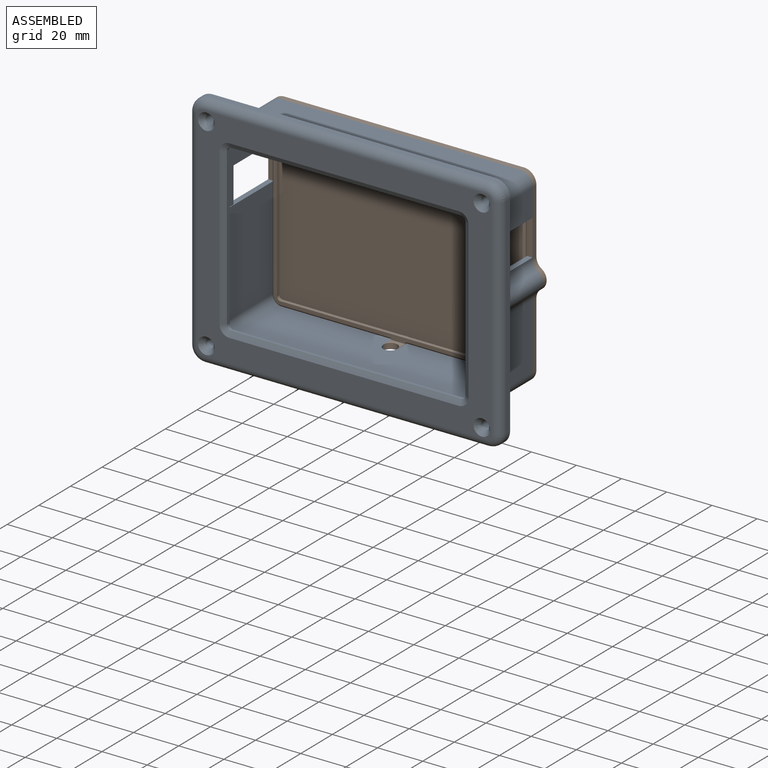
[diagram: assembled view]
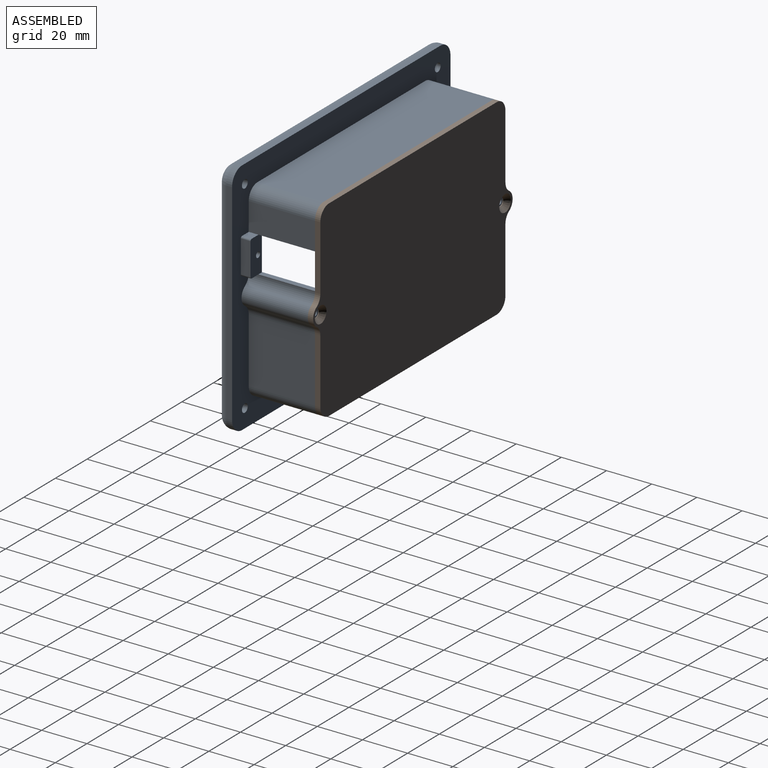
[diagram: assembled view, second angle]
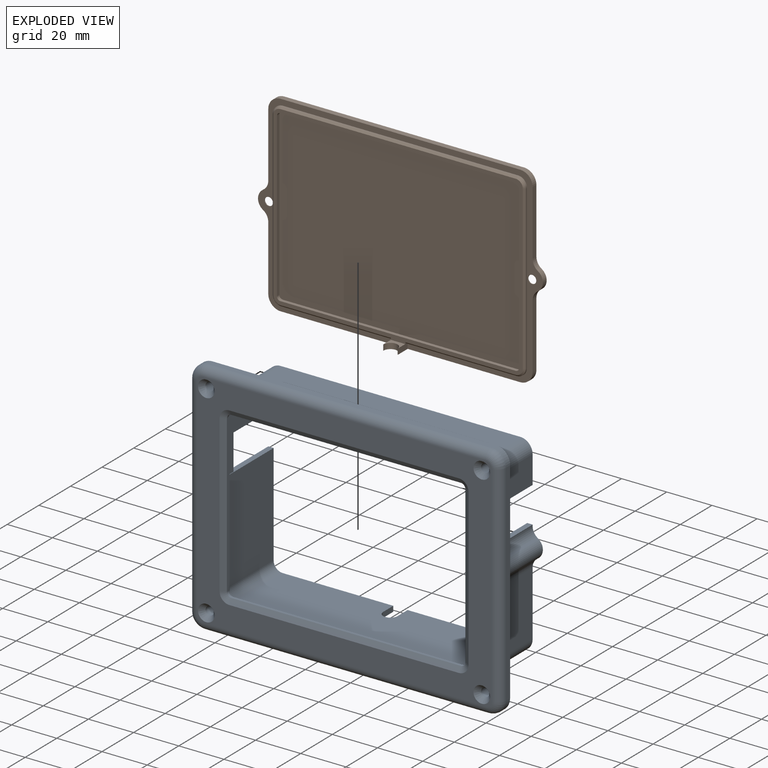
[diagram: exploded view]
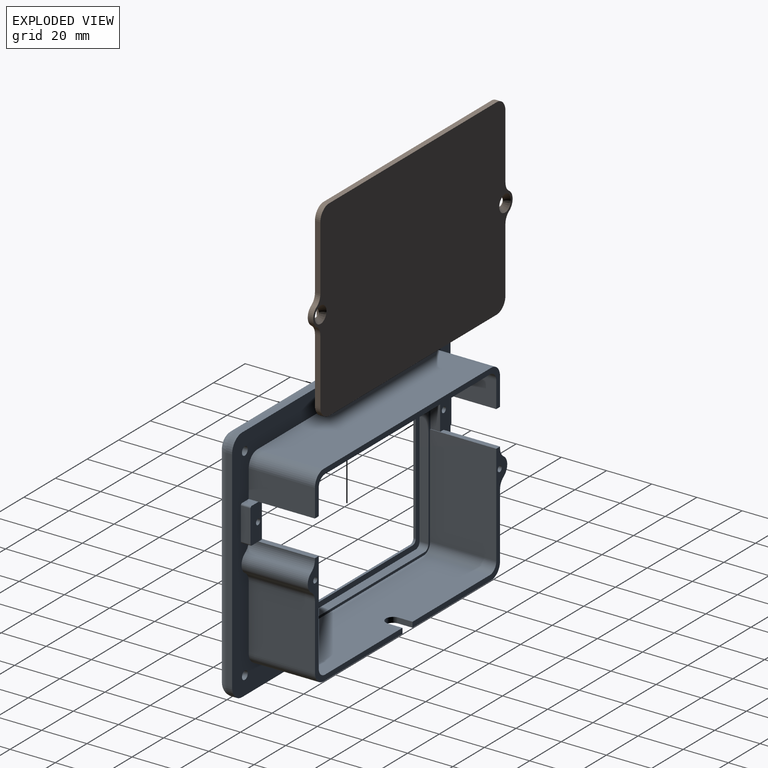
[diagram: exploded view, second angle]
ASSEMBLY  parts=2 mates=2
PART A: 120 faces, bbox 138.1x35.7x105.9 mm
  f0: plane 106.07x29.31mm, normal (0,0,-1), area 3052.9mm2, adj f2,f10,f79,f99,f100,f117,f118,f119
  f1: plane 104.34x29.31mm, normal (0,0,1), area 3002.3mm2, adj f2,f8,f79,f95,f96,f117,f118,f119
  f2: plane 59.89x51.38mm, normal (0,1,0), area 278.2mm2, adj f0,f1,f3,f4,f76,f77,f96,f99
  f3: plane 29.31x0.57mm, normal (-1,0,0), area 16.7mm2, adj f2,f9,f10,f76,f109
  f4: plane 29.31x28.74mm, normal (-1,0,0), area 842.3mm2, adj f2,f10,f99,f110
  f5: plane 29.31x0.57mm, normal (1,0,0), area 16.7mm2, adj f10,f37,f75,f79,f111
  f6: plane 29.31x28.74mm, normal (1,0,0), area 842.3mm2, adj f10,f79,f100,f112
  f7: plane 4.29x4.23mm, normal (0,0,1), area 18.2mm2, adj f10,f42,f82,f113
  f8: plane 112.75x80.26mm, normal (0,1,0), area 403.8mm2, adj f1,f28,f29,f30,f31,f33,f40,f75
  f9: plane 4.29x4.23mm, normal (0,0,-1), area 18.2mm2, adj f3,f10,f42,f114
  f10: plane 138.13x105.92mm, normal (0,1,0), area 4393.5mm2, adj f0,f3,f4,f5,f6,f7,f9,f19
  f11: plane 101.6x1.07mm, normal (0,0,-1), area 108.5mm2, adj f15,f16,f32,f47
  f12: plane 69.32x1.07mm, normal (1,0,0), area 74mm2, adj f16,f17,f32,f43
  f13: plane 101.6x1.07mm, normal (0,0,1), area 108.5mm2, adj f17,f18,f32,f46
  f14: plane 69.32x1.07mm, normal (-1,0,0), area 74mm2, adj f15,f18,f32,f50
  f15: cylinder r=1.98mm len=1.98mm, axis (0,-1,0), area 3.3mm2, adj f11,f14,f32,f49
  f16: cylinder r=1.98mm len=1.98mm, axis (0,-1,0), area 3.3mm2, adj f11,f12,f32,f45
  f17: cylinder r=1.98mm len=1.98mm, axis (0,-1,0), area 3.3mm2, adj f12,f13,f32,f44
  f18: cylinder r=1.98mm len=1.98mm, axis (0,-1,0), area 3.3mm2, adj f13,f14,f32,f48
  f19: cylinder r=6.35mm len=6.35mm, axis (0,1,0), area 25.3mm2, adj f10,f20,f26,f56
  f20: plane 125.43x2.54mm, normal (0,0,1), area 318.6mm2, adj f10,f19,f21,f58
  f21: cylinder r=6.35mm len=6.35mm, axis (0,1,0), area 25.3mm2, adj f10,f20,f22,f57
  f22: plane 93.22x2.54mm, normal (-1,0,0), area 236.8mm2, adj f10,f21,f23,f55
  f23: cylinder r=6.35mm len=6.35mm, axis (0,1,0), area 25.3mm2, adj f10,f22,f24,f53
  f24: plane 125.43x2.54mm, normal (0,0,-1), area 318.6mm2, adj f10,f23,f25,f51
  f25: cylinder r=6.35mm len=6.35mm, axis (0,1,0), area 25.3mm2, adj f10,f24,f26,f52
  f26: plane 93.22x2.54mm, normal (1,0,0), area 236.8mm2, adj f10,f19,f25,f54
  f27: plane 130.51x98.3mm, normal (0,-1,0), area 4088.8mm2, adj f51,f52,f53,f54,f55,f56,f57,f58
  f28: plane 73.28x3.96mm, normal (1,0,0), area 290.4mm2, adj f8,f32,f89,f92
  f29: plane 105.49x3.96mm, normal (0,0,-1), area 418mm2, adj f8,f32,f89,f90
  f30: plane 73.28x3.96mm, normal (-1,0,0), area 290.4mm2, adj f8,f32,f90,f91
  f31: plane 105.49x3.96mm, normal (0,0,1), area 418mm2, adj f8,f32,f91,f92
  f32: plane 110.26x78.05mm, normal (0,1,0), area 869.3mm2, adj f11,f12,f13,f14,f15,f16,f17,f18
  f33: plane 15.88x4.29mm, normal (-1,0,0), area 68.1mm2, adj f8,f38,f75,f80
  f34: plane 4.29x4.23mm, normal (0,0,1), area 18.2mm2, adj f10,f38,f84,f116
  f35: plane 14.35x4.29mm, normal (1,0,0), area 61.6mm2, adj f10,f38,f115,f116
  f36: cylinder r=1.27mm len=7.47mm, axis (0,-1,0), area 59.6mm2, adj f38,f102
  f37: plane 4.29x4.23mm, normal (0,0,-1), area 18.2mm2, adj f5,f10,f38,f115
  f38: plane 15.88x7.14mm, normal (0,1,0), area 108mm2, adj f33,f34,f35,f36,f37,f75,f80,f115
  f39: plane 14.35x4.29mm, normal (-1,0,0), area 61.6mm2, adj f10,f42,f113,f114
  f40: plane 15.88x4.29mm, normal (1,0,0), area 68.1mm2, adj f8,f42,f76,f81
  f41: cylinder r=1.27mm len=7.47mm, axis (0,-1,0), area 59.6mm2, adj f42,f101
  f42: plane 15.88x7.14mm, normal (0,1,0), area 108mm2, adj f7,f9,f39,f40,f41,f76,f81,f113
  f43: plane 69.32x1.37mm, normal (0.5,-0.87,0), area 109.9mm2, adj f12,f44,f45,f69
  f44: cone r=1.98mm half-angle=60deg, axis (0,-1,0), area 6.6mm2, adj f17,f43,f46,f70
  f45: cone r=1.98mm half-angle=60deg, axis (0,-1,0), area 6.6mm2, adj f16,f43,f47,f67
  f46: plane 101.6x1.37mm, normal (0,-0.87,0.5), area 161mm2, adj f13,f44,f48,f68
  f47: plane 101.6x1.37mm, normal (0,-0.87,-0.5), area 161mm2, adj f11,f45,f49,f65
  f48: cone r=1.98mm half-angle=60deg, axis (0,-1,0), area 6.6mm2, adj f18,f46,f50,f66
  f49: cone r=1.98mm half-angle=60deg, axis (0,-1,0), area 6.6mm2, adj f15,f47,f50,f63
  f50: plane 69.32x1.37mm, normal (-0.5,-0.87,0), area 109.9mm2, adj f14,f48,f49,f64
  f51: cylinder r=3.81mm len=125.43mm, axis (-1,0,0), area 750.6mm2, adj f24,f27,f52,f53
  f52: torus R=2.54mm, axis (0,-1,0), area 46.7mm2, adj f25,f27,f51,f54
  f53: torus R=2.54mm, axis (0,-1,0), area 46.7mm2, adj f23,f27,f51,f55
  f54: cylinder r=3.81mm len=93.22mm, axis (0,0,-1), area 557.9mm2, adj f26,f27,f52,f56
  f55: cylinder r=3.81mm len=93.22mm, axis (0,0,1), area 557.9mm2, adj f22,f27,f53,f57
  f56: torus R=2.54mm, axis (0,-1,0), area 46.7mm2, adj f19,f27,f54,f58
  f57: torus R=2.54mm, axis (0,-1,0), area 46.7mm2, adj f21,f27,f55,f58
  f58: cylinder r=3.81mm len=125.43mm, axis (1,0,0), area 750.6mm2, adj f20,f27,f56,f57
  f59: cylinder r=1.83mm len=4.22mm, axis (0,-1,0), area 48.4mm2, adj f10,f73
  f60: cylinder r=1.83mm len=4.22mm, axis (0,-1,0), area 48.4mm2, adj f10,f74
  f61: cylinder r=1.83mm len=4.22mm, axis (0,-1,0), area 48.4mm2, adj f10,f71
  f62: cylinder r=1.83mm len=4.22mm, axis (0,-1,0), area 48.4mm2, adj f10,f72
  f63: cone r=4.28mm half-angle=60.4deg, axis (0,-1,0), area 6.4mm2, adj f27,f49,f64,f65
  f64: plane 69.32x0.93mm, normal (-0.49,-0.87,0), area 73.9mm2, adj f27,f50,f63,f66
  f65: plane 101.6x0.93mm, normal (0,-0.87,-0.49), area 108.4mm2, adj f27,f47,f63,f67
  f66: cone r=4.28mm half-angle=60.4deg, axis (0,-1,0), area 6.4mm2, adj f27,f48,f64,f68
  f67: cone r=4.28mm half-angle=60.4deg, axis (0,-1,0), area 6.4mm2, adj f27,f45,f65,f69
  f68: plane 101.6x0.93mm, normal (0,-0.87,0.49), area 108.4mm2, adj f27,f46,f66,f70
  f69: plane 69.32x0.93mm, normal (0.49,-0.87,0), area 73.9mm2, adj f27,f43,f67,f70
  f70: cone r=4.28mm half-angle=60.4deg, axis (0,-1,0), area 6.4mm2, adj f27,f44,f68,f69
  f71: cone r=1.83mm half-angle=41deg, axis (0,-1,0), area 49mm2, adj f27,f61
  f72: cone r=1.83mm half-angle=41deg, axis (0,-1,0), area 49mm2, adj f27,f62
  f73: cone r=1.83mm half-angle=41deg, axis (0,-1,0), area 49mm2, adj f27,f59
  f74: cone r=1.83mm half-angle=41deg, axis (0,-1,0), area 49mm2, adj f27,f60
  f75: plane 29.31x2.39mm, normal (0,0,1), area 60.8mm2, adj f5,f8,f33,f38,f78,f79
  f76: plane 29.31x2.39mm, normal (0,0,1), area 60.8mm2, adj f2,f3,f8,f40,f42,f77
  f77: plane 45.03x29.31mm, normal (1,0,0), area 1320mm2, adj f2,f8,f76,f96
  f78: plane 45.03x29.31mm, normal (-1,0,0), area 1320mm2, adj f8,f75,f79,f95
  f79: plane 59.89x51.38mm, normal (0,1,0), area 278.2mm2, adj f0,f1,f5,f6,f75,f78,f95,f100
  f80: plane 29.31x2.39mm, normal (0,0,-1), area 60.8mm2, adj f8,f33,f38,f84,f85,f88
  f81: plane 29.31x2.39mm, normal (0,0,-1), area 60.8mm2, adj f8,f40,f42,f82,f87,f88
  f82: plane 29.31x12.29mm, normal (-1,0,0), area 360.3mm2, adj f7,f10,f81,f88,f97
  f83: plane 106.07x29.31mm, normal (0,0,1), area 3109.1mm2, adj f10,f88,f97,f98
  f84: plane 29.31x12.29mm, normal (1,0,0), area 360.3mm2, adj f10,f34,f80,f88,f98
  f85: plane 29.31x11.43mm, normal (-1,0,0), area 335mm2, adj f8,f80,f88,f93
  f86: plane 104.34x29.31mm, normal (0,0,-1), area 3058.5mm2, adj f8,f88,f93,f94
  f87: plane 29.31x11.43mm, normal (1,0,0), area 335mm2, adj f8,f81,f88,f94
  f88: plane 117.04x17.78mm, normal (0,1,0), area 346.8mm2, adj f80,f81,f82,f83,f84,f85,f86,f87
  f89: cylinder r=2.39mm len=3.96mm, axis (0,-1,0), area 14.9mm2, adj f8,f28,f29,f32
  f90: cylinder r=2.39mm len=3.96mm, axis (0,1,0), area 14.9mm2, adj f8,f29,f30,f32
  f91: cylinder r=2.39mm len=3.96mm, axis (0,-1,0), area 14.9mm2, adj f8,f30,f31,f32
  f92: cylinder r=2.39mm len=3.96mm, axis (0,1,0), area 14.9mm2, adj f8,f28,f31,f32
  f93: cylinder r=3.96mm len=29.31mm, axis (0,-1,0), area 182.4mm2, adj f8,f85,f86,f88
  f94: cylinder r=3.96mm len=29.31mm, axis (0,1,0), area 182.4mm2, adj f8,f86,f87,f88
  f95: cylinder r=3.96mm len=29.31mm, axis (0,1,0), area 182.4mm2, adj f1,f8,f78,f79
  f96: cylinder r=3.96mm len=29.31mm, axis (0,-1,0), area 182.4mm2, adj f1,f2,f8,f77
  f97: cylinder r=5.49mm len=29.31mm, axis (0,-1,0), area 252.6mm2, adj f10,f82,f83,f88
  f98: cylinder r=5.49mm len=29.31mm, axis (0,1,0), area 252.6mm2, adj f10,f83,f84,f88
  f99: cylinder r=5.49mm len=29.31mm, axis (0,1,0), area 252.6mm2, adj f0,f2,f4,f10
  f100: cylinder r=5.49mm len=29.31mm, axis (0,-1,0), area 252.6mm2, adj f0,f6,f10,f79
  f101: plane 2.54x2.54mm, normal (0,1,0), area 5.1mm2, adj f41
  f102: plane 2.54x2.54mm, normal (0,1,0), area 5.1mm2, adj f36
  f103: cylinder r=4.76mm len=29.31mm, axis (0,-1,0), area 279.9mm2, adj f10,f79,f111,f112
  f104: cylinder r=4.76mm len=29.31mm, axis (0,-1,0), area 279.9mm2, adj f2,f10,f109,f110
  f105: cylinder r=1.27mm len=12.7mm, axis (0,1,0), area 101.3mm2, adj f2,f106
  f106: plane 2.54x2.54mm, normal (0,1,0), area 5.1mm2, adj f105
  f107: cylinder r=1.27mm len=12.7mm, axis (0,1,0), area 101.3mm2, adj f79,f108
  f108: plane 2.54x2.54mm, normal (0,1,0), area 5.1mm2, adj f107
  f109: cylinder r=5.08mm len=29.31mm, axis (0,-1,0), area 149.3mm2, adj f2,f3,f10,f104
  f110: cylinder r=5.08mm len=29.31mm, axis (0,-1,0), area 149.3mm2, adj f2,f4,f10,f104
  f111: cylinder r=5.08mm len=29.31mm, axis (0,-1,0), area 149.3mm2, adj f5,f10,f79,f103
  f112: cylinder r=5.08mm len=29.31mm, axis (0,-1,0), area 149.3mm2, adj f6,f10,f79,f103
  f113: cylinder r=0.76mm len=4.29mm, axis (0,-1,0), area 5.1mm2, adj f7,f10,f39,f42
  f114: cylinder r=0.76mm len=4.29mm, axis (0,1,0), area 5.1mm2, adj f9,f10,f39,f42
  f115: cylinder r=0.76mm len=4.29mm, axis (0,-1,0), area 5.1mm2, adj f10,f35,f37,f38
  f116: cylinder r=0.76mm len=4.29mm, axis (0,1,0), area 5.1mm2, adj f10,f34,f35,f38
  f117: cylinder r=3.17mm len=6.35mm, axis (0,0,-1), area 23.8mm2, adj f0,f1,f118,f119
  f118: plane 6.35x2.39mm, normal (1,0,0), area 15.2mm2, adj f0,f1,f2,f117
  f119: plane 6.35x2.39mm, normal (-1,0,0), area 15.2mm2, adj f0,f1,f79,f117
PART B: 54 faces, bbox 126.1x8.7x85 mm
  f0: plane 126.14x85.04mm, normal (0,1,0), area 1015.9mm2, adj f1,f2,f3,f4,f5,f6,f7,f9
  f1: plane 48.9x0.76mm, normal (0,0,-1), area 37.3mm2, adj f0,f18,f34,f45
  f2: plane 28.74x2.39mm, normal (1,0,0), area 68.6mm2, adj f0,f8,f16,f24
  f3: plane 28.74x2.39mm, normal (-1,0,0), area 68.6mm2, adj f0,f8,f17,f26
  f4: plane 28.74x2.39mm, normal (-1,0,0), area 68.6mm2, adj f0,f8,f14,f27
  f5: plane 106.07x8.74mm, normal (0,0,-1), area 277.7mm2, adj f0,f8,f14,f15,f33,f34,f35
  f6: plane 28.74x2.39mm, normal (1,0,0), area 68.6mm2, adj f0,f8,f15,f25
  f7: plane 106.07x2.39mm, normal (0,0,1), area 253.3mm2, adj f0,f8,f16,f17
  f8: plane 126.14x85.04mm, normal (0,-1,0), area 9916.6mm2, adj f2,f3,f4,f5,f6,f7,f14,f15
  f9: plane 72.14x0.76mm, normal (-1,0,0), area 55mm2, adj f0,f18,f21,f47
  f10: plane 48.9x0.76mm, normal (0,0,-1), area 37.3mm2, adj f0,f19,f33,f53
  f11: plane 72.14x0.76mm, normal (1,0,0), area 55mm2, adj f0,f19,f20,f51
  f12: plane 104.14x0.76mm, normal (0,0,1), area 79.4mm2, adj f0,f20,f21,f49
  f13: plane 110.49x79.25mm, normal (0,1,0), area 602.1mm2, adj f32,f33,f34,f37,f38,f39,f40,f41
  f14: cylinder r=5.49mm len=5.49mm, axis (0,1,0), area 20.6mm2, adj f0,f4,f5,f8
  f15: cylinder r=5.49mm len=5.49mm, axis (0,-1,0), area 20.6mm2, adj f0,f5,f6,f8
  f16: cylinder r=5.49mm len=5.49mm, axis (0,1,0), area 20.6mm2, adj f0,f2,f7,f8
  f17: cylinder r=5.49mm len=5.49mm, axis (0,-1,0), area 20.6mm2, adj f0,f3,f7,f8
  f18: cylinder r=3.94mm len=3.94mm, axis (0,-1,0), area 4.7mm2, adj f0,f1,f9,f46
  f19: cylinder r=3.94mm len=3.94mm, axis (0,1,0), area 4.7mm2, adj f0,f10,f11,f52
  f20: cylinder r=3.94mm len=3.94mm, axis (0,-1,0), area 4.7mm2, adj f0,f11,f12,f50
  f21: cylinder r=3.94mm len=3.94mm, axis (0,1,0), area 4.7mm2, adj f0,f9,f12,f48
  f22: cylinder r=4.76mm len=8.03mm, axis (0,-1,0), area 22.8mm2, adj f0,f8,f26,f27
  f23: cylinder r=4.76mm len=8.03mm, axis (0,-1,0), area 22.8mm2, adj f0,f8,f24,f25
  f24: cylinder r=5.08mm len=4.28mm, axis (0,-1,0), area 12.2mm2, adj f0,f2,f8,f23
  f25: cylinder r=5.08mm len=4.28mm, axis (0,-1,0), area 12.2mm2, adj f0,f6,f8,f23
  f26: cylinder r=5.08mm len=4.28mm, axis (0,-1,0), area 12.2mm2, adj f0,f3,f8,f22
  f27: cylinder r=5.08mm len=4.28mm, axis (0,-1,0), area 12.2mm2, adj f0,f4,f8,f22
  f28: cylinder r=1.83mm len=3.66mm, axis (0,-1,0), area 2.9mm2, adj f0,f30
  f29: cylinder r=1.83mm len=3.66mm, axis (0,-1,0), area 2.9mm2, adj f0,f31
  f30: cone r=1.83mm half-angle=41deg, axis (0,-1,0), area 49mm2, adj f8,f28
  f31: cone r=1.83mm half-angle=41deg, axis (0,-1,0), area 49mm2, adj f8,f29
  f32: plane 6.35x4.83mm, normal (0,0,1), area 14.8mm2, adj f13,f33,f34,f35
  f33: plane 6.35x3.28mm, normal (1,0,0), area 16.3mm2, adj f0,f5,f10,f13,f32,f35,f53
  f34: plane 6.35x3.28mm, normal (-1,0,0), area 16.3mm2, adj f0,f1,f5,f13,f32,f35,f45
  f35: cylinder r=3.17mm len=6.35mm, axis (0,0,-1), area 25.1mm2, adj f5,f32,f33,f34
  f36: plane 107.24x75.24mm, normal (0,1,0), area 8066mm2, adj f37,f38,f39,f40,f41,f42,f43,f44
  f37: cylinder r=1.55mm len=1.55mm, axis (0,1,0), area 3.7mm2, adj f13,f36,f38,f42
  f38: plane 72.14x1.52mm, normal (1,0,0), area 109.9mm2, adj f13,f36,f37,f39
  f39: cylinder r=1.55mm len=1.55mm, axis (0,1,0), area 3.7mm2, adj f13,f36,f38,f40
  f40: plane 104.14x1.52mm, normal (0,0,-1), area 158.7mm2, adj f13,f36,f39,f41
  f41: cylinder r=1.55mm len=1.55mm, axis (0,1,0), area 3.7mm2, adj f13,f36,f40,f43
  f42: plane 104.14x1.52mm, normal (0,0,1), area 158.7mm2, adj f13,f36,f37,f44
  f43: plane 72.14x1.52mm, normal (-1,0,0), area 109.9mm2, adj f13,f36,f41,f44
  f44: cylinder r=1.55mm len=1.55mm, axis (0,1,0), area 3.7mm2, adj f13,f36,f42,f43
  f45: plane 48.9x0.76mm, normal (0,0.71,-0.71), area 52.7mm2, adj f1,f13,f34,f46
  f46: cone r=3.17mm half-angle=45deg, axis (0,-1,0), area 6mm2, adj f13,f18,f45,f47
  f47: plane 72.14x0.76mm, normal (-0.71,0.71,0), area 77.7mm2, adj f9,f13,f46,f48
  f48: cone r=3.17mm half-angle=45deg, axis (0,-1,0), area 6mm2, adj f13,f21,f47,f49
  f49: plane 104.14x0.76mm, normal (0,0.71,0.71), area 112.2mm2, adj f12,f13,f48,f50
  f50: cone r=3.17mm half-angle=45deg, axis (0,-1,0), area 6mm2, adj f13,f20,f49,f51
  f51: plane 72.14x0.76mm, normal (0.71,0.71,0), area 77.7mm2, adj f11,f13,f50,f52
  f52: cone r=3.17mm half-angle=45deg, axis (0,-1,0), area 6mm2, adj f13,f19,f51,f53
  f53: plane 48.9x0.76mm, normal (0,0.71,-0.71), area 52.7mm2, adj f10,f13,f33,f52
PLACE A t=(-142.97,46.55,98.44)mm
PLACE B rot(axis=(0,0,-1),180deg) t=(-142.97,75.86,98.44)mm
MATE planar A.f79 <-> B.f36  axis (0,1,0) through (-97.86,75.86,72.72)mm
MATE cylindrical B.f22 <-> A.f103  axis (0,1,0) through (-84.66,75.99,98.44)mm
